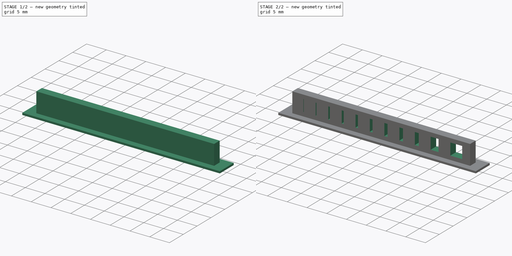
[diagram: build sequence overview — one tinted view per stage of 2, left to right]
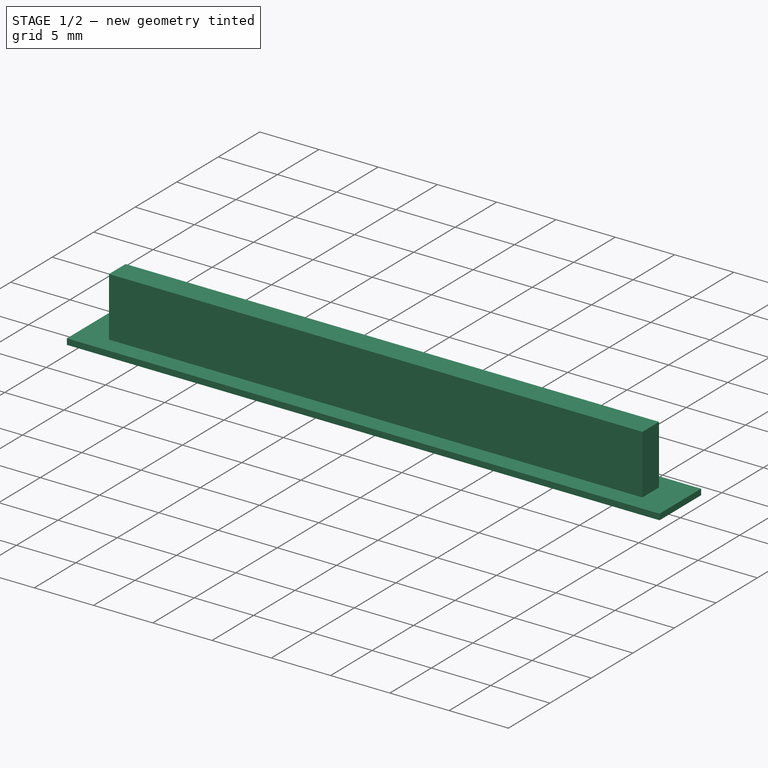
[diagram: stage 1 of 2 — iso view after this stage's code; geometry added in this stage tinted green]
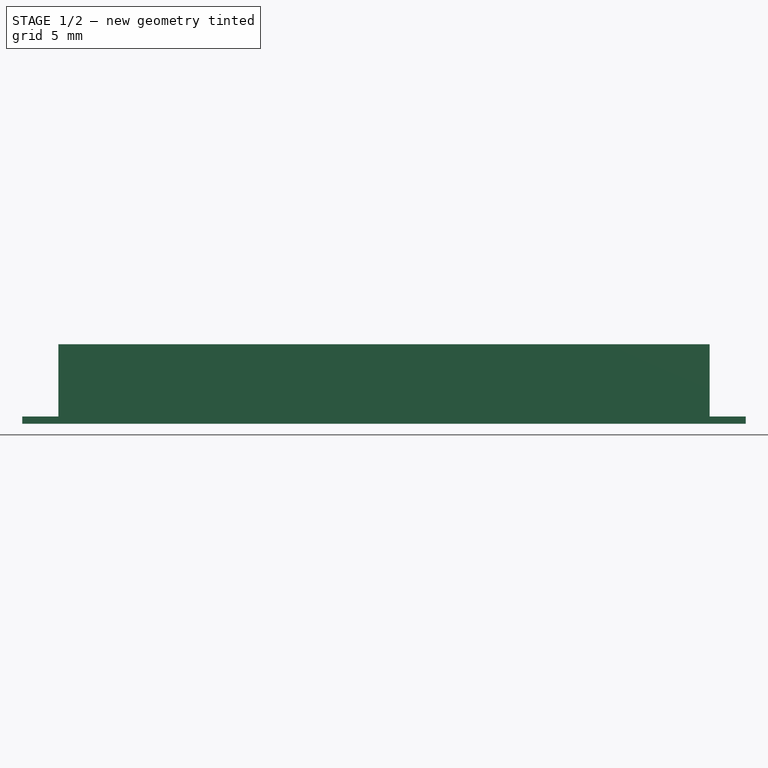
[diagram: stage 1 of 2 — front view after this stage's code; geometry added in this stage tinted green]
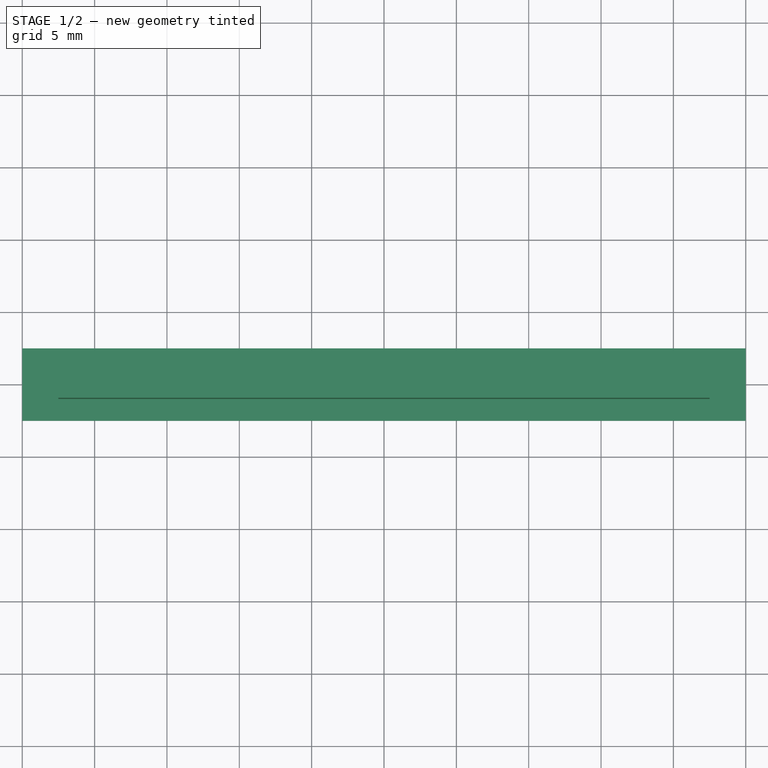
[diagram: stage 1 of 2 — top view after this stage's code; geometry added in this stage tinted green]
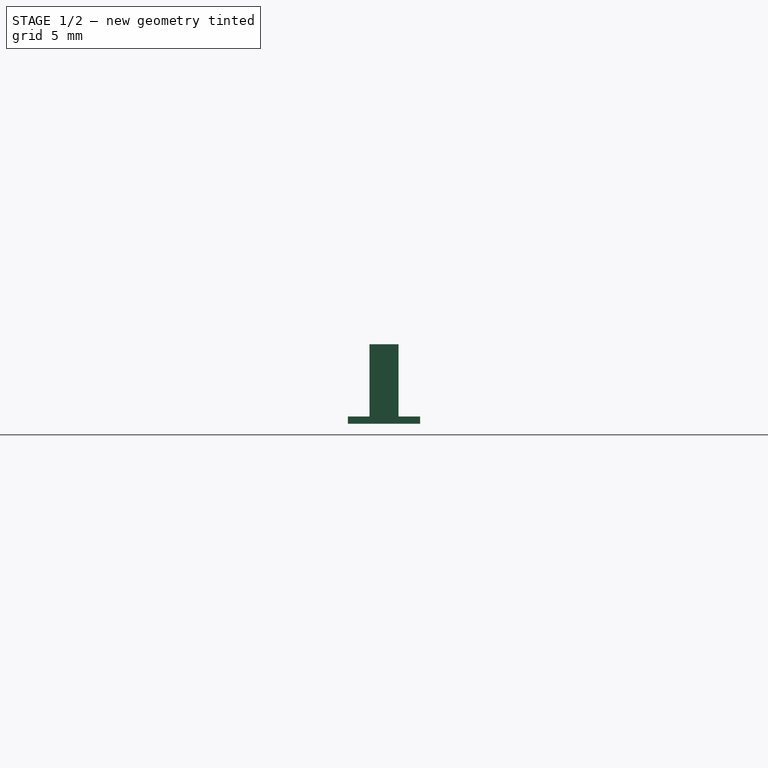
[diagram: stage 1 of 2 — right view after this stage's code; geometry added in this stage tinted green]
FCSTD DOCUMENT  (FreeCAD 0.20R25065 (Git))
Label: Bridge
License: All rights reserved
LicenseURL: http://en.wikipedia.org/wiki/All_rights_reserved
objects: Sketcher::SketchObject×3, PartDesign::Pad×2, PartDesign::Pocket×1, PartDesign::Body×1
note: 10 computed .brp shape members not serialized (recipe doc carries the construction recipe); baked Part::Feature solids carry a one-line shape summary decoded from their .brp

FEATURE [Sketcher::SketchObject] Sketch
  FullyConstrained = true
  MapMode = 5
  Support = -> [XY_Plane]
  sketch-geometry (4):
    g0: LineSegment StartX=-25 StartY=2.5 StartZ=0 EndX=25 EndY=2.5 EndZ=0
    g1: LineSegment StartX=25 StartY=2.5 StartZ=0 EndX=25 EndY=-2.5 EndZ=0
    g2: LineSegment StartX=25 StartY=-2.5 StartZ=0 EndX=-25 EndY=-2.5 EndZ=0
    g3: LineSegment StartX=-25 StartY=-2.5 StartZ=0 EndX=-25 EndY=2.5 EndZ=0
  constraints (10):
    c: Coincident(g0,g1)
    c: Coincident(g1,g2)
    c: Coincident(g2,g3)
    c: Coincident(g3,g0)
    c: Horizontal(g2)
    c: Vertical(g3)
    c: DistanceX(g0,g0) = 50
    c: DistanceY(g3,g3) = 5
    c: Symmetric(g0,g0,g-2)
    c: Symmetric(g0,g1,g-1)
FEATURE [PartDesign::Pad] Pad
  Direction = (0,0,1)
  Length = 0.5
  Length2 = 100
  Profile = -> Sketch
  Type = 0
FEATURE [Sketcher::SketchObject] Sketch001
  FullyConstrained = true
  MapMode = 5
  Placement = pos=(0,0,0.5) rot=(0,0,1;0rad)
  Support = -> [Pad]
  sketch-geometry (4):
    g0: LineSegment StartX=22.5 StartY=-1 StartZ=0 EndX=-22.5 EndY=-1 EndZ=0
    g1: LineSegment StartX=-22.5 StartY=-1 StartZ=0 EndX=-22.5 EndY=1 EndZ=0
    g2: LineSegment StartX=-22.5 StartY=1 StartZ=0 EndX=22.5 EndY=1 EndZ=0
    g3: LineSegment StartX=22.5 StartY=1 StartZ=0 EndX=22.5 EndY=-1 EndZ=0
  constraints (10):
    c: Coincident(g0,g1)
    c: Coincident(g1,g2)
    c: Coincident(g2,g3)
    c: Coincident(g3,g0)
    c: Horizontal(g0)
    c: Vertical(g1)
    c: Symmetric(g2,g1,g-2)
    c: Symmetric(g2,g0,g-1)
    c: Distance(g2) = 45
    c: Distance(g3) = 2
FEATURE [PartDesign::Pad] Pad001
  BaseFeature = -> Pad
  Direction = (0,0,1)
  Length = 5
  Length2 = 100
  Profile = -> Sketch001
  Type = 0
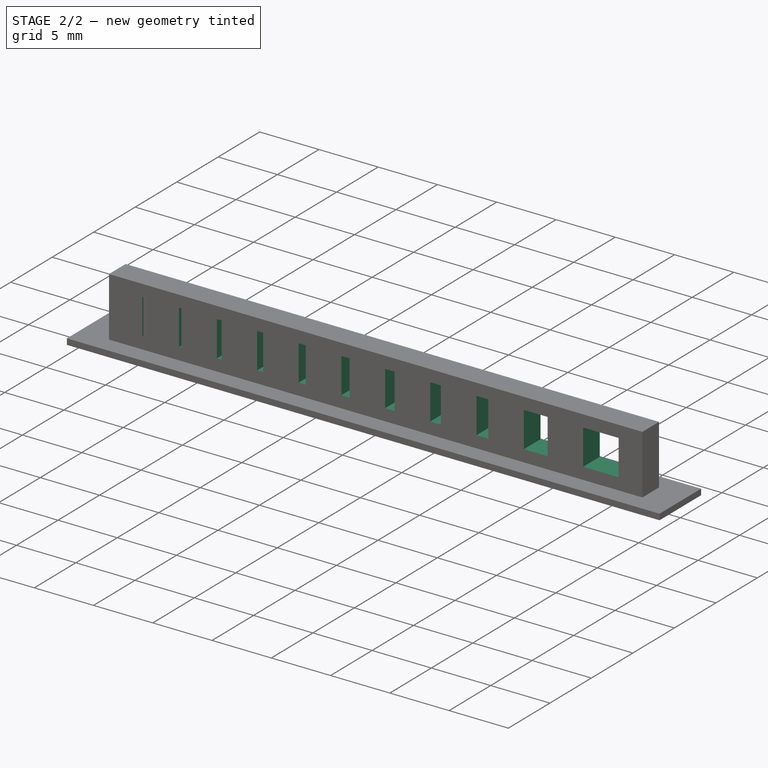
[diagram: stage 2 of 2 — iso view after this stage's code; geometry added in this stage tinted green]
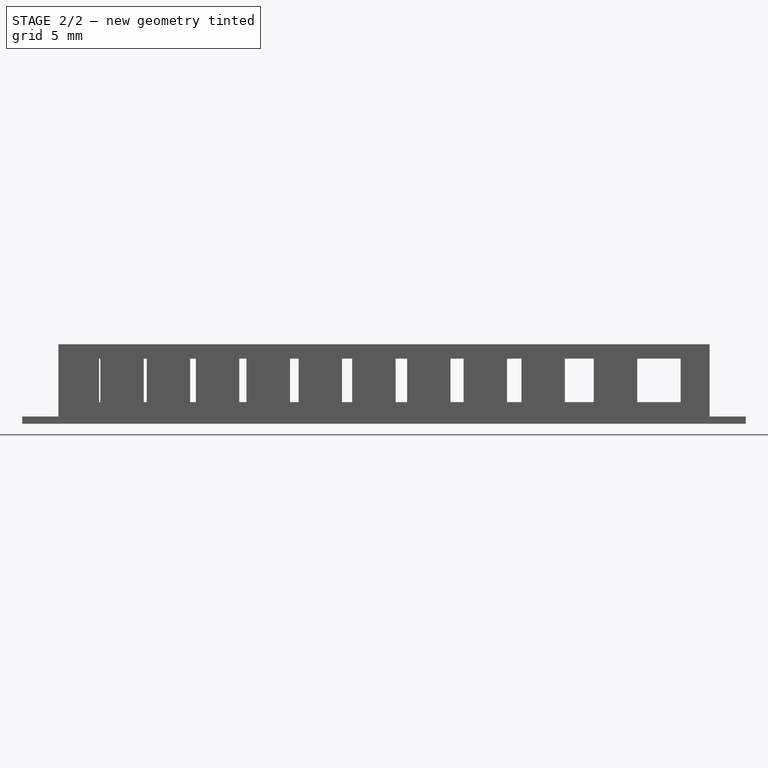
[diagram: stage 2 of 2 — front view after this stage's code; geometry added in this stage tinted green]
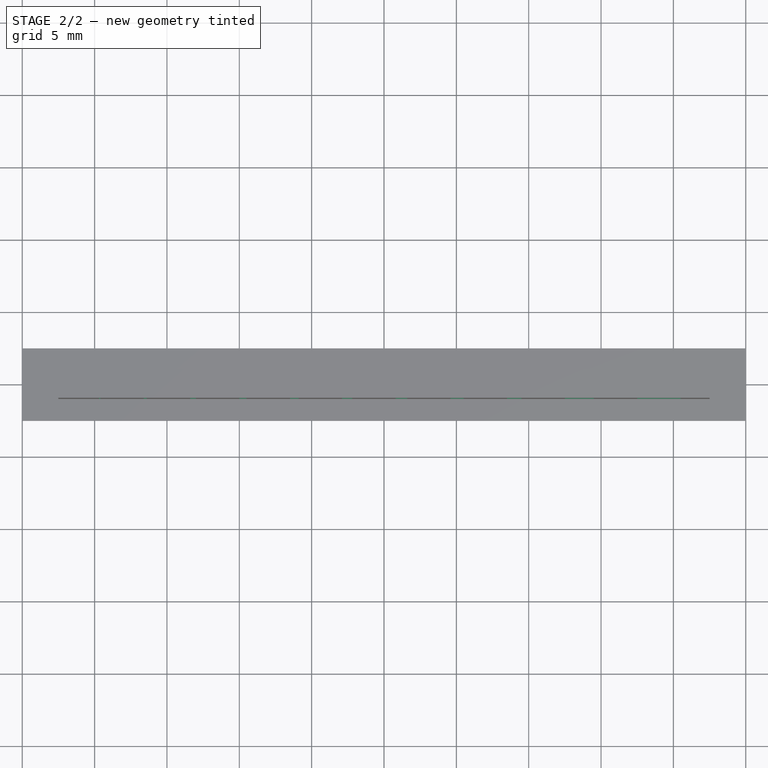
[diagram: stage 2 of 2 — top view after this stage's code; geometry added in this stage tinted green]
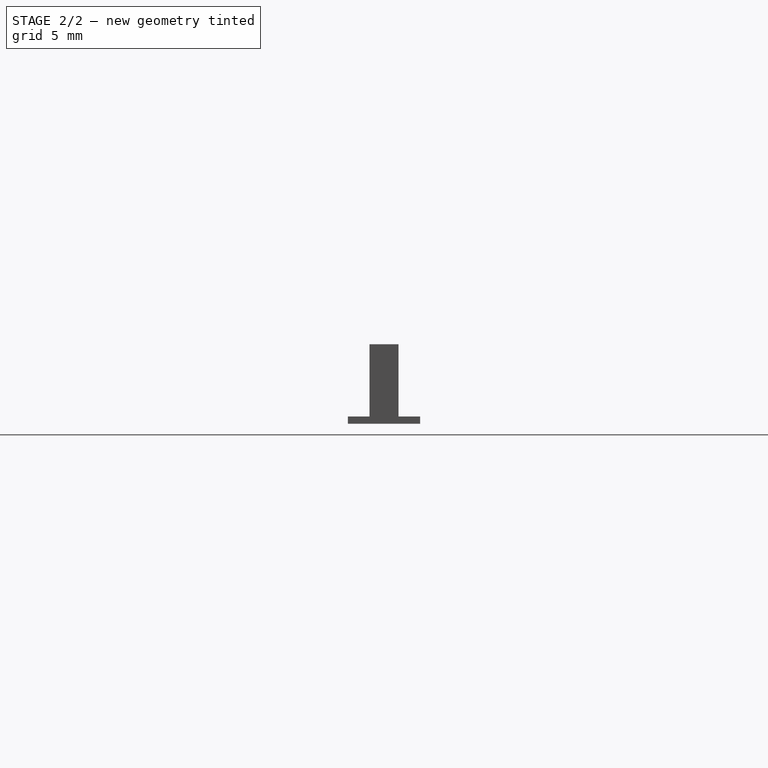
[diagram: stage 2 of 2 — right view after this stage's code; geometry added in this stage tinted green]
FEATURE [Sketcher::SketchObject] Sketch002
  ExternalGeometry = -> [Pad001]
  FullyConstrained = true
  MapMode = 5
  Placement = pos=(0,-1,0) rot=(1,0,0;1.5708rad)
  Support = -> [Pad001]
  sketch-geometry (54):
    g0: LineSegment StartX=20.5 StartY=4.5 StartZ=0 EndX=17.5 EndY=4.5 EndZ=0
    g1: LineSegment StartX=17.5 StartY=4.5 StartZ=0 EndX=17.5 EndY=1.5 EndZ=0
    g2: LineSegment StartX=17.5 StartY=1.5 StartZ=0 EndX=20.5 EndY=1.5 EndZ=0
    g3: LineSegment StartX=20.5 StartY=1.5 StartZ=0 EndX=20.5 EndY=4.5 EndZ=0
    g4: LineSegment StartX=14.5 StartY=4.5 StartZ=0 EndX=12.5 EndY=4.5 EndZ=0
    g5: LineSegment StartX=12.5 StartY=4.5 StartZ=0 EndX=12.5 EndY=1.5 EndZ=0
    g6: LineSegment StartX=12.5 StartY=1.5 StartZ=0 EndX=14.5 EndY=1.5 EndZ=0
    g7: LineSegment StartX=14.5 StartY=1.5 StartZ=0 EndX=14.5 EndY=4.5 EndZ=0
    g8: LineSegment StartX=9.5 StartY=4.5 StartZ=0 EndX=8.5 EndY=4.5 EndZ=0
    g9: LineSegment StartX=8.5 StartY=4.5 StartZ=0 EndX=8.5 EndY=1.5 EndZ=0
    g10: LineSegment StartX=8.5 StartY=1.5 StartZ=0 EndX=9.5 EndY=1.5 EndZ=0
    g11: LineSegment StartX=9.5 StartY=1.5 StartZ=0 EndX=9.5 EndY=4.5 EndZ=0
    g12: LineSegment StartX=5.5 StartY=4.5 StartZ=0 EndX=4.6 EndY=4.5 EndZ=0
    g13: LineSegment StartX=4.6 StartY=4.5 StartZ=0 EndX=4.6 EndY=1.5 EndZ=0
    g14: LineSegment StartX=4.6 StartY=1.5 StartZ=0 EndX=5.5 EndY=1.5 EndZ=0
    g15: LineSegment StartX=5.5 StartY=1.5 StartZ=0 EndX=5.5 EndY=4.5 EndZ=0
    g16: LineSegment StartX=1.6 StartY=4.5 StartZ=0 EndX=0.8 EndY=4.5 EndZ=0
    g17: LineSegment StartX=0.8 StartY=4.5 StartZ=0 EndX=0.8 EndY=1.5 EndZ=0
    g18: LineSegment StartX=0.8 StartY=1.5 StartZ=0 EndX=1.6 EndY=1.5 EndZ=0
    g19: LineSegment StartX=1.6 StartY=1.5 StartZ=0 EndX=1.6 EndY=4.5 EndZ=0
    g20: LineSegment StartX=-2.2 StartY=4.5 StartZ=0 EndX=-2.9 EndY=4.5 EndZ=0
    g21: LineSegment StartX=-2.9 StartY=4.5 StartZ=0 EndX=-2.9 EndY=1.5 EndZ=0
    g22: LineSegment StartX=-2.9 StartY=1.5 StartZ=0 EndX=-2.2 EndY=1.5 EndZ=0
    g23: LineSegment StartX=-2.2 StartY=1.5 StartZ=0 EndX=-2.2 EndY=4.5 EndZ=0
    g24: LineSegment StartX=-5.9 StartY=4.5 StartZ=0 EndX=-6.5 EndY=4.5 EndZ=0
    g25: LineSegment StartX=-6.5 StartY=4.5 StartZ=0 EndX=-6.5 EndY=1.5 EndZ=0
    g26: LineSegment StartX=-6.5 StartY=1.5 StartZ=0 EndX=-5.9 EndY=1.5 EndZ=0
    g27: LineSegment StartX=-5.9 StartY=1.5 StartZ=0 EndX=-5.9 EndY=4.5 EndZ=0
    g28: LineSegment StartX=-9.5 StartY=4.5 StartZ=0 EndX=-10 EndY=4.5 EndZ=0
    g29: LineSegment StartX=-10 StartY=4.5 StartZ=0 EndX=-10 EndY=1.5 EndZ=0
    g30: LineSegment StartX=-10 StartY=1.5 StartZ=0 EndX=-9.5 EndY=1.5 EndZ=0
    g31: LineSegment StartX=-9.5 StartY=1.5 StartZ=0 EndX=-9.5 EndY=4.5 EndZ=0
    g32: LineSegment StartX=-13 StartY=4.5 StartZ=0 EndX=-13.4 EndY=4.5 EndZ=0
    g33: LineSegment StartX=-13.4 StartY=4.5 StartZ=0 EndX=-13.4 EndY=1.5 EndZ=0
    g34: LineSegment StartX=-13.4 StartY=1.5 StartZ=0 EndX=-13 EndY=1.5 EndZ=0
    g35: LineSegment StartX=-13 StartY=1.5 StartZ=0 EndX=-13 EndY=4.5 EndZ=0
    g36: LineSegment StartX=-16.4 StartY=4.5 StartZ=0 EndX=-16.6 EndY=4.5 EndZ=0
    g37: LineSegment StartX=-16.6 StartY=4.5 StartZ=0 EndX=-16.6 EndY=1.5 EndZ=0
    g38: LineSegment StartX=-16.6 StartY=1.5 StartZ=0 EndX=-16.4 EndY=1.5 EndZ=0
    g39: LineSegment StartX=-16.4 StartY=1.5 StartZ=0 EndX=-16.4 EndY=4.5 EndZ=0
    g40: LineSegment StartX=-16.4 StartY=4.5 StartZ=0 EndX=-13.4 EndY=4.5 EndZ=0
    g41: LineSegment StartX=-13 StartY=4.5 StartZ=0 EndX=-10 EndY=4.5 EndZ=0
    g42: LineSegment StartX=-9.5 StartY=4.5 StartZ=0 EndX=-6.5 EndY=4.5 EndZ=0
    g43: LineSegment StartX=-5.9 StartY=4.5 StartZ=0 EndX=-2.9 EndY=4.5 EndZ=0
    g44: LineSegment StartX=-2.2 StartY=4.5 StartZ=0 EndX=0.8 EndY=4.5 EndZ=0
    g45: LineSegment StartX=1.6 StartY=4.5 StartZ=0 EndX=4.6 EndY=4.5 EndZ=0
    g46: LineSegment StartX=5.5 StartY=4.5 StartZ=0 EndX=8.5 EndY=4.5 EndZ=0
    g47: LineSegment StartX=9.5 StartY=4.5 StartZ=0 EndX=12.5 EndY=4.5 EndZ=0
    g48: LineSegment StartX=17.5 StartY=4.5 StartZ=0 EndX=14.5 EndY=4.5 EndZ=0
    g49: LineSegment StartX=-19.7 StartY=4.5 StartZ=0 EndX=-19.6 EndY=4.5 EndZ=0
    g50: LineSegment StartX=-19.6 StartY=4.5 StartZ=0 EndX=-19.6 EndY=1.5 EndZ=0
    g51: LineSegment StartX=-19.6 StartY=1.5 StartZ=0 EndX=-19.7 EndY=1.5 EndZ=0
    g52: LineSegment StartX=-19.7 StartY=1.5 StartZ=0 EndX=-19.7 EndY=4.5 EndZ=0
    g53: LineSegment StartX=-16.6 StartY=4.5 StartZ=0 EndX=-19.6 EndY=4.5 EndZ=0
  constraints (152):
    c: Coincident(g0,g1)
    c: Coincident(g1,g2)
    c: Coincident(g2,g3)
    c: Coincident(g3,g0)
    c: Horizontal(g0)
    c: Horizontal(g2)
    c: Vertical(g1)
    c: Vertical(g3)
    c: Coincident(g4,g5)
    c: Coincident(g5,g6)
    c: Coincident(g6,g7)
    c: Coincident(g7,g4)
    c: Horizontal(g4)
    c: Horizontal(g6)
    c: Vertical(g5)
    c: Vertical(g7)
    c: Coincident(g8,g9)
    c: Coincident(g9,g10)
    c: Coincident(g10,g11)
    c: Coincident(g11,g8)
    c: Horizontal(g8)
    c: Horizontal(g10)
    c: Vertical(g9)
    c: Vertical(g11)
    c: Coincident(g12,g13)
    c: Coincident(g13,g14)
    c: Coincident(g14,g15)
    c: Coincident(g15,g12)
    c: Horizontal(g12)
    c: Horizontal(g14)
    c: Vertical(g13)
    c: Vertical(g15)
    c: Coincident(g16,g17)
    c: Coincident(g17,g18)
    c: Coincident(g18,g19)
    c: Coincident(g19,g16)
    c: Horizontal(g16)
    c: Horizontal(g18)
    c: Vertical(g17)
    c: Vertical(g19)
    c: Coincident(g20,g21)
    c: Coincident(g21,g22)
    c: Coincident(g22,g23)
    c: Coincident(g23,g20)
    c: Horizontal(g20)
    c: Horizontal(g22)
    c: Vertical(g21)
    c: Vertical(g23)
    c: Coincident(g24,g25)
    c: Coincident(g25,g26)
    c: Coincident(g26,g27)
    c: Coincident(g27,g24)
    c: Horizontal(g24)
    c: Horizontal(g26)
    c: Vertical(g25)
    c: Vertical(g27)
    c: Coincident(g28,g29)
    c: Coincident(g29,g30)
    c: Coincident(g30,g31)
    c: Coincident(g31,g28)
    c: Horizontal(g28)
    c: Horizontal(g30)
    c: Vertical(g29)
    c: Vertical(g31)
    c: Coincident(g32,g33)
    c: Coincident(g33,g34)
    c: Coincident(g34,g35)
    c: Coincident(g35,g32)
    c: Horizontal(g32)
    c: Horizontal(g34)
    c: Vertical(g33)
    c: Vertical(g35)
    c: Coincident(g36,g37)
    c: Coincident(g37,g38)
    c: Coincident(g38,g39)
    c: Coincident(g39,g36)
    c: Horizontal(g36)
    c: Horizontal(g38)
    c: Vertical(g37)
    c: Vertical(g39)
    c: Coincident(g40,g36)
    c: Coincident(g40,g32)
    c: Horizontal(g40)
    c: Coincident(g41,g32)
    c: Coincident(g41,g28)
    c: Horizontal(g41)
    c: Coincident(g42,g28)
    c: Coincident(g42,g24)
    c: Horizontal(g42)
    c: Coincident(g43,g24)
    c: Coincident(g43,g20)
    c: Coincident(g44,g20)
    c: Coincident(g44,g16)
    c: Coincident(g45,g16)
    c: Coincident(g45,g12)
    c: Coincident(g46,g12)
    c: Coincident(g46,g8)
    c: Coincident(g47,g8)
    c: Coincident(g47,g4)
    c: Coincident(g48,g0)
    c: Coincident(g48,g4)
    c: Horizontal(g47)
    c: Horizontal(g48)
    c: Horizontal(g46)
    c: Horizontal(g45)
    c: Horizontal(g44)
    c: Equal(g19,g23)
    c: Equal(g23,g27)
    c: Equal(g27,g31)
    c: Equal(g31,g35)
    c: Equal(g35,g39)
    c: Equal(g39,g15)
    c: Equal(g15,g11)
    c: Equal(g11,g7)
    c: Equal(g7,g3)
    c: Horizontal(g43)
    c: Equal(g40,g41)
    c: Equal(g41,g42)
    c: Equal(g42,g43)
    c: Equal(g43,g44)
    c: Equal(g44,g45)
    c: Equal(g45,g46)
    c: Equal(g46,g47)
    c: Equal(g47,g48)
    c: DistanceX(g45,g45) = 3
    c: DistanceY(g-1,g2) = 1.5
    c: DistanceY(g3,g3) = 3
    c: DistanceX(g0,g-3) = 2
    c: DistanceX(g0,g0) = 3
    c: DistanceX(g4,g4) = 2
    c: DistanceX(g8,g8) = 1
    c: DistanceX(g12,g12) = 0.9
    c: DistanceX(g16,g16) = 0.8
    c: DistanceX(g20,g20) = 0.7
    c: DistanceX(g24,g24) = 0.6
    c: DistanceX(g28,g28) = 0.5
    c: DistanceX(g32,g32) = 0.4
    c: DistanceX(g36,g36) = 0.2
    c: Coincident(g49,g50)
    c: Coincident(g50,g51)
    c: Coincident(g51,g52)
    c: Coincident(g52,g49)
    c: Horizontal(g49)
    c: Horizontal(g51)
    c: Vertical(g50)
    c: Vertical(g52)
    c: Coincident(g53,g36)
    c: Coincident(g53,g49)
    c: Horizontal(g53)
    c: Equal(g40,g53)
    c: Equal(g50,g39)
    c: DistanceX(g49,g49) = 0.1
FEATURE [PartDesign::Pocket] Pocket
  BaseFeature = -> Pad001
  Length = 5
  Length2 = 100
  Profile = -> Sketch002
  Type = 1
FEATURE [PartDesign::Body] Body  label="Bridge"
  Group = -> [Sketch,Pad,Sketch001,Pad001,Sketch002,Pocket]
  Origin = -> Origin
  Tip = -> Pocket
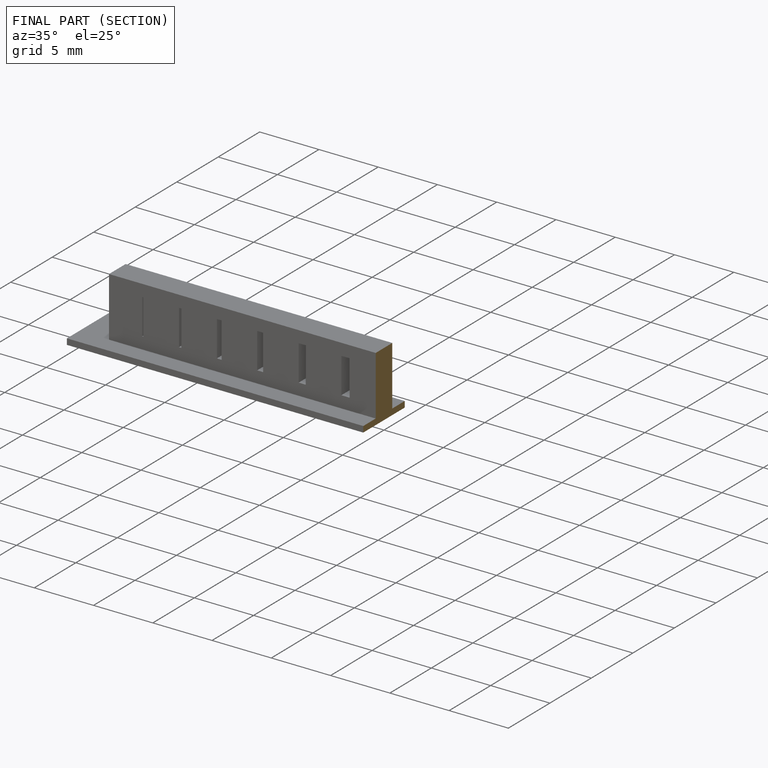
[diagram: finished part — half-section view (interior)]
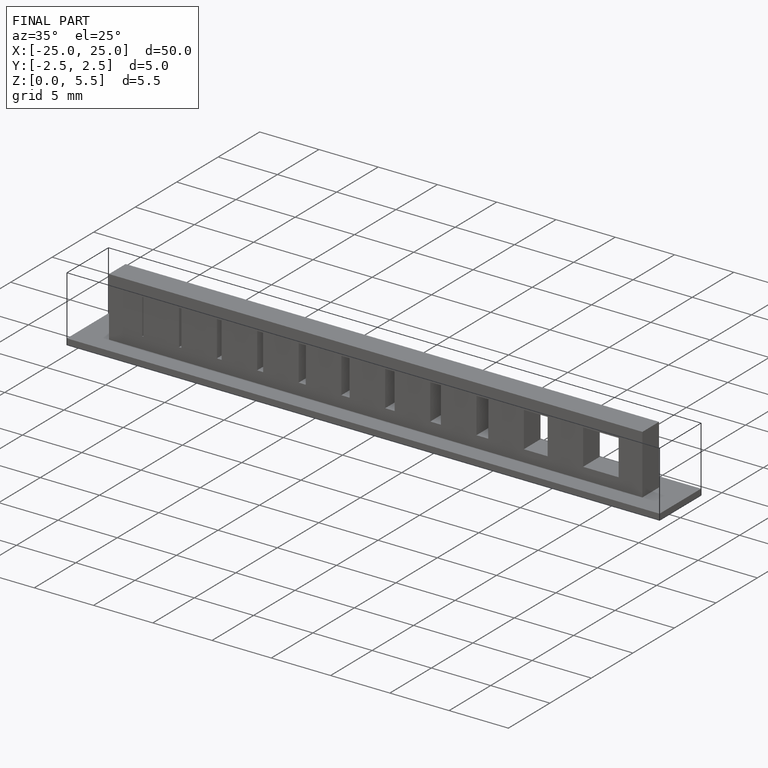
[diagram: finished part — iso view with bounding-box wireframe]
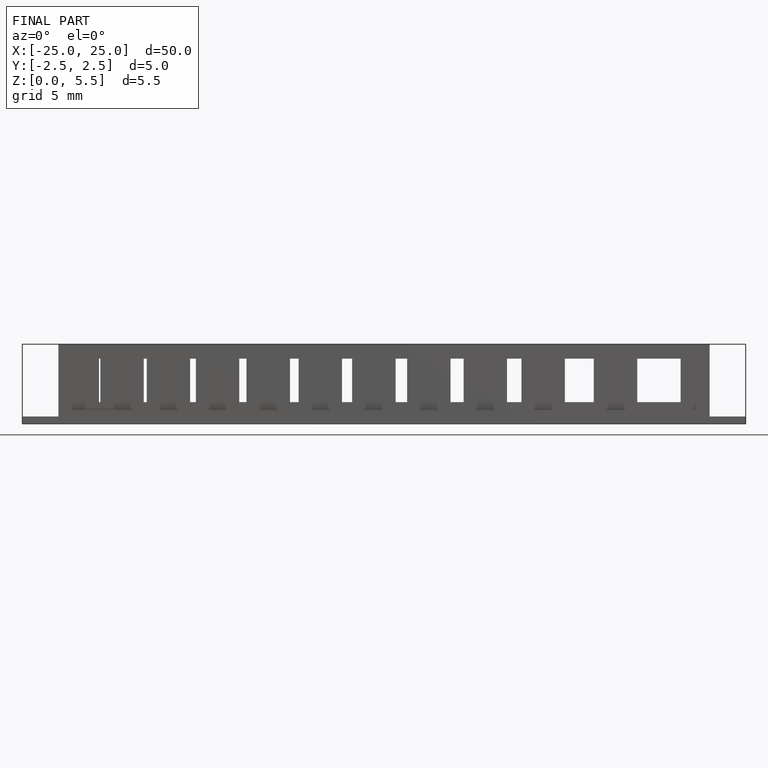
[diagram: finished part — front view with bounding-box wireframe]
